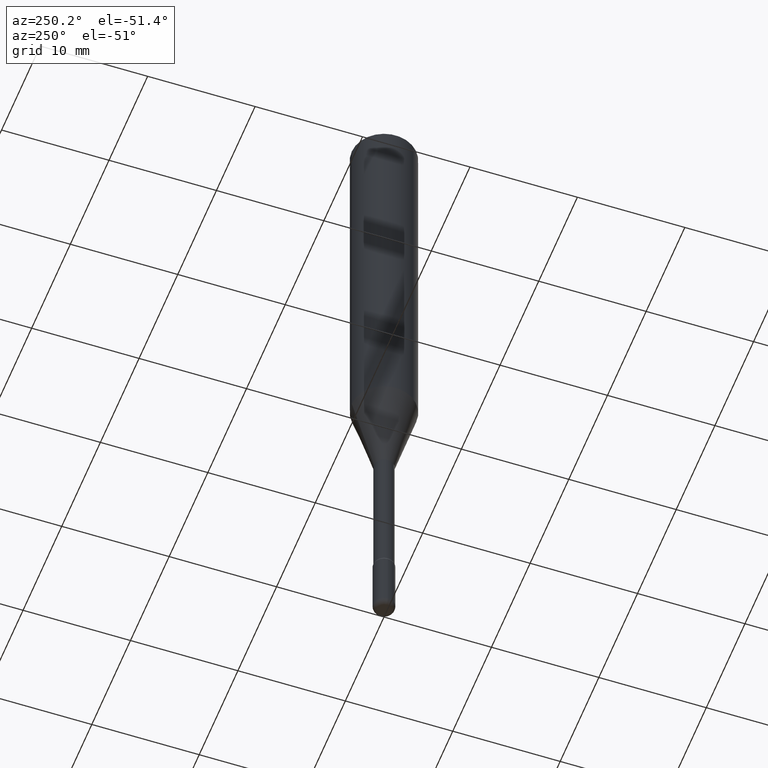
[diagram: clean part render]
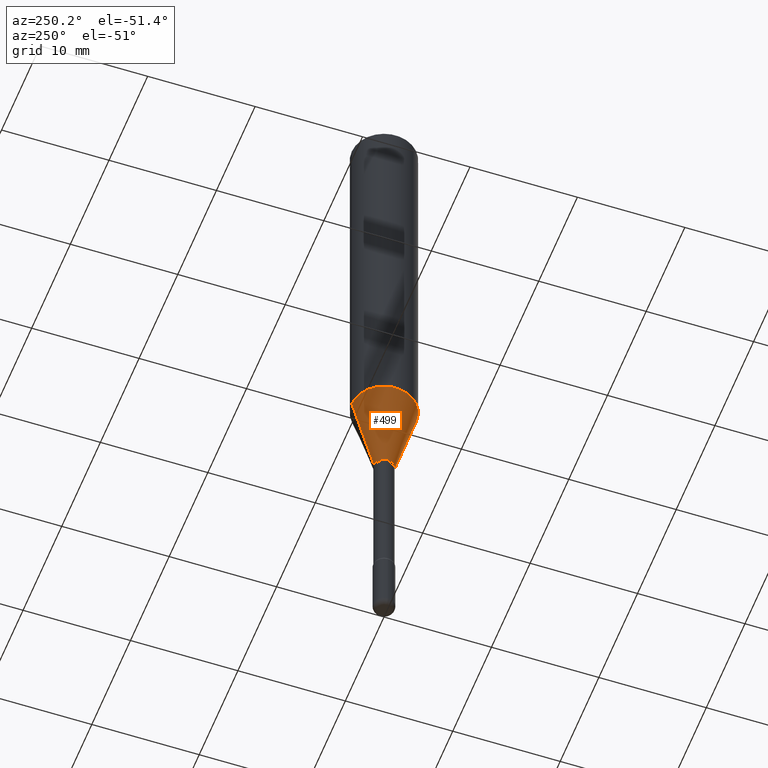
[diagram: same view with one face highlighted and labeled with its STEP entity id]
A machine part, auxiliary view. The second image highlights one B-rep face of the part: STEP entity #499.
In plain terms, the highlighted conical surface has half-angle 15 deg.
Its self-contained STEP definition (entity closure, byte-faithful):
#2 = VECTOR ( 'NONE', #198, 39.37007874015748854 ) ;
#7 = ORIENTED_EDGE ( 'NONE', *, *, #530, .F. ) ;
#22 = CARTESIAN_POINT ( 'NONE',  ( -2.619386993237965275E-16, -0.03751111260566995093, -1.710692501787273390 ) ) ;
#30 = EDGE_CURVE ( 'NONE', #366, #70, #308, .T. ) ;
#41 = CARTESIAN_POINT ( 'NONE',  ( 4.183309985249835233E-29, -5.973044510241383254E-15, -1.710692501787273390 ) ) ;
#48 = VECTOR ( 'NONE', #264, 39.37007874015748854 ) ;
#70 = VERTEX_POINT ( 'NONE', #342 ) ;
#115 = AXIS2_PLACEMENT_3D ( 'NONE', #433, #256, #125 ) ;
#125 = DIRECTION ( 'NONE',  ( -6.982962677686266711E-15, -1.000000000000000000, 0.000000000000000000 ) ) ;
#130 = ORIENTED_EDGE ( 'NONE', *, *, #30, .F. ) ;
#131 = EDGE_CURVE ( 'NONE', #366, #339, #144, .T. ) ;
#144 = CIRCLE ( 'NONE', #115, 0.03751111260566397654 ) ;
#174 = DIRECTION ( 'NONE',  ( -6.982962677686266711E-15, -1.000000000000000000, 0.000000000000000000 ) ) ;
#178 = CARTESIAN_POINT ( 'NONE',  ( 3.447830094494486299E-29, -4.922906189304403806E-15, -1.409930679506165019 ) ) ;
#198 = DIRECTION ( 'NONE',  ( -1.807323732225328562E-15, -0.2588190451025179639, 0.9659258262890690894 ) ) ;
#214 = DIRECTION ( 'NONE',  ( -2.445389794413230210E-29, 3.491594488197586527E-15, 1.000000000000000000 ) ) ;
#234 = CARTESIAN_POINT ( 'NONE',  ( -8.246878922347136513E-16, -0.1181000000000049094, -1.409930679506164797 ) ) ;
#245 = AXIS2_PLACEMENT_3D ( 'NONE', #178, #479, #303 ) ;
#256 = DIRECTION ( 'NONE',  ( -2.445389794413230210E-29, 3.491594488197586527E-15, 1.000000000000000000 ) ) ;
#264 = DIRECTION ( 'NONE',  ( 1.839019923739598738E-15, 0.2588190451025247363, 0.9659258262890673130 ) ) ;
#265 = FACE_OUTER_BOUND ( 'NONE', #268, .T. ) ;
#268 = EDGE_LOOP ( 'NONE', ( #130, #510, #470, #7 ) ) ;
#292 = VERTEX_POINT ( 'NONE', #234 ) ;
#298 = LINE ( 'NONE', #22, #2 ) ;
#303 = DIRECTION ( 'NONE',  ( -6.982962677686265922E-15, -1.000000000000000000, 4.626330217890369336E-15 ) ) ;
#308 = LINE ( 'NONE', #393, #48 ) ;
#323 = CONICAL_SURFACE ( 'NONE', #365, 0.03751111260566397654, 0.2617993877991500740 ) ;
#339 = VERTEX_POINT ( 'NONE', #389 ) ;
#342 = CARTESIAN_POINT ( 'NONE',  ( 8.391509709327121181E-16, 0.1180999999999950423, -1.409930679506165685 ) ) ;
#365 = AXIS2_PLACEMENT_3D ( 'NONE', #41, #214, #174 ) ;
#366 = VERTEX_POINT ( 'NONE', #555 ) ;
#388 = CIRCLE ( 'NONE', #245, 0.1180999999999999966 ) ;
#389 = CARTESIAN_POINT ( 'NONE',  ( -2.619386993237965275E-16, -0.03751111260566995093, -1.710692501787273390 ) ) ;
#393 = CARTESIAN_POINT ( 'NONE',  ( 2.665324857223784301E-16, 0.03751111260565800909, -1.710692501787273390 ) ) ;
#433 = CARTESIAN_POINT ( 'NONE',  ( 4.183309985249835233E-29, -5.973044510241383254E-15, -1.710692501787273390 ) ) ;
#470 = ORIENTED_EDGE ( 'NONE', *, *, #481, .T. ) ;
#479 = DIRECTION ( 'NONE',  ( -2.445389794413230210E-29, 3.491594488197586527E-15, 1.000000000000000000 ) ) ;
#481 = EDGE_CURVE ( 'NONE', #339, #292, #298, .T. ) ;
#499 = ADVANCED_FACE ( 'NONE', ( #265 ), #323, .T. ) ;
#510 = ORIENTED_EDGE ( 'NONE', *, *, #131, .T. ) ;
#530 = EDGE_CURVE ( 'NONE', #70, #292, #388, .T. ) ;
#555 = CARTESIAN_POINT ( 'NONE',  ( 5.528417283275456685E-16, 0.03751111260565800909, -1.710692501787273390 ) ) ;